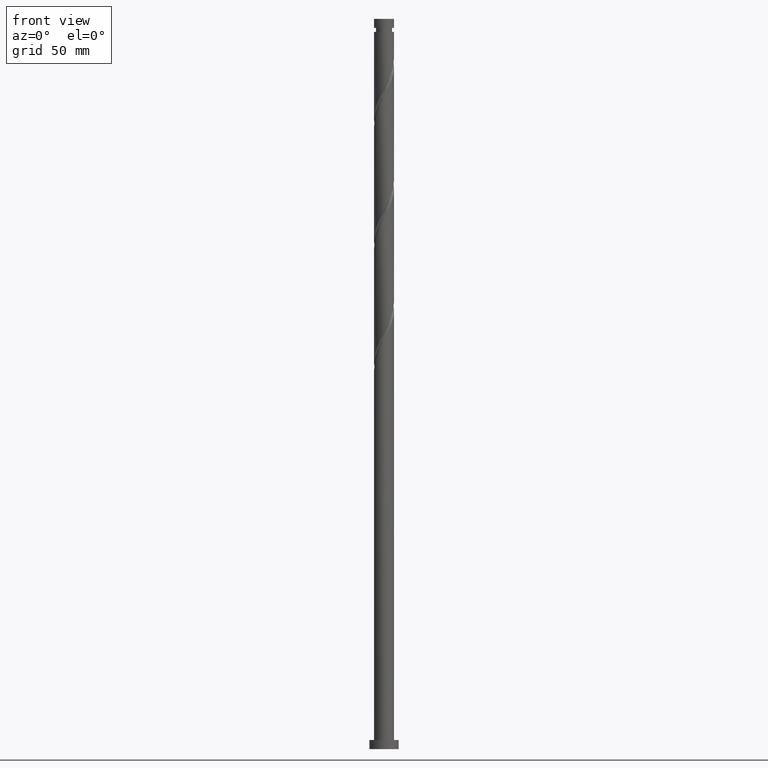
[diagram: clean part render]
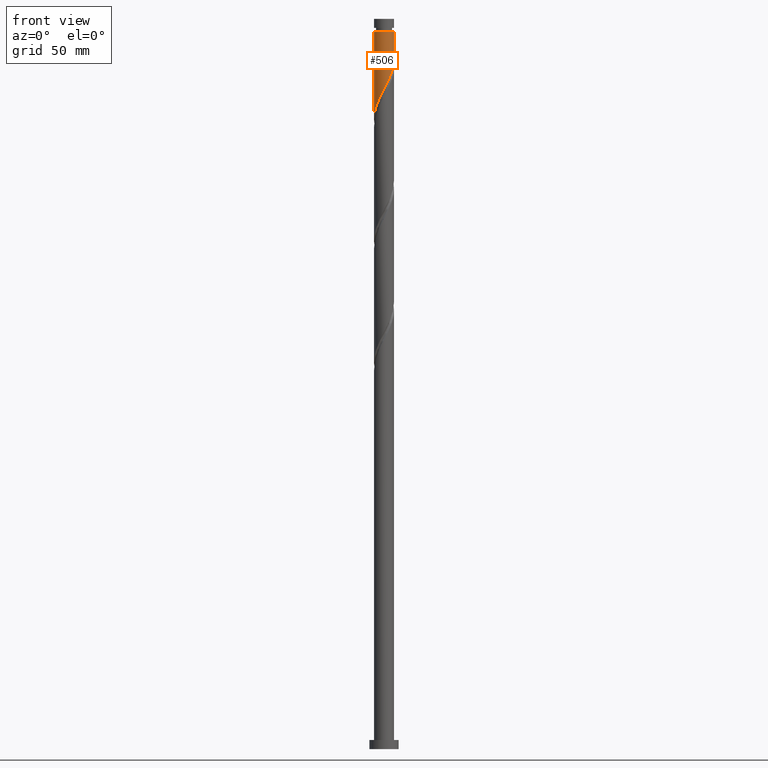
[diagram: same view with one face highlighted and labeled with its STEP entity id]
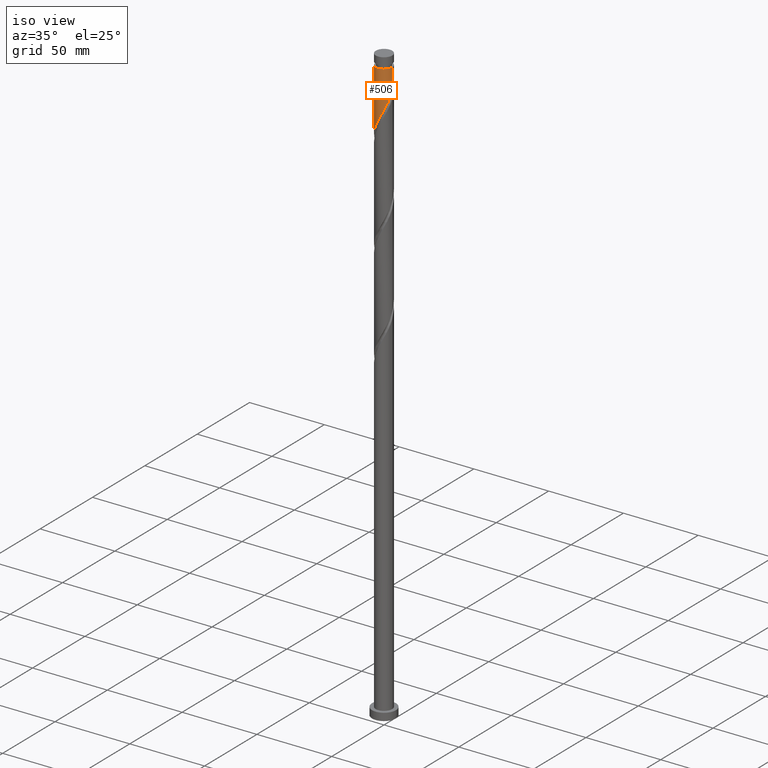
[diagram: same view with one face highlighted and labeled with its STEP entity id]
A machine part, front view. The second image highlights one B-rep face of the part: STEP entity #506.
A second angle (iso view) of the same face is appended — the face is thin or edge-on in the first view.
In plain terms, the highlighted cylindrical surface (edge-blend (fillet) strip) has radius 5.5 mm, axis along (-0, -0, -1).
Its self-contained STEP definition (entity closure, byte-faithful):
#42 = ORIENTED_EDGE ( 'NONE', *, *, #262, .T. ) ;
#66 = CARTESIAN_POINT ( 'NONE',  ( -5.500000000000001776, -4.095865825262278103E-15, 344.9724859766018881 ) ) ;
#69 = EDGE_LOOP ( 'NONE', ( #1037, #1252, #42, #1069 ) ) ;
#70 = CARTESIAN_POINT ( 'NONE',  ( -5.499999999999963585, 0.000000000000000000, 392.8470427330803432 ) ) ;
#118 = CARTESIAN_POINT ( 'NONE',  ( -3.662918688511955789, -4.143331439136995975, 353.9581538441915995 ) ) ;
#127 = CARTESIAN_POINT ( 'NONE',  ( 5.072446488125604169, -2.203282859347254874, 373.9581538441915427 ) ) ;
#137 = CARTESIAN_POINT ( 'NONE',  ( 2.282704589466713507, -5.003924435603280152, 366.1803760664136007 ) ) ;
#201 = LINE ( 'NONE', #1450, #1960 ) ;
#250 = EDGE_CURVE ( 'NONE', #1525, #1226, #1004, .T. ) ;
#262 = EDGE_CURVE ( 'NONE', #1859, #279, #201, .T. ) ;
#268 = CARTESIAN_POINT ( 'NONE',  ( 3.737754574404958507, -4.075948904820323904, 369.5137093997471425 ) ) ;
#279 = VERTEX_POINT ( 'NONE', #66 ) ;
#285 = CARTESIAN_POINT ( 'NONE',  ( -0.5279743527352924737, -5.505035133043654660, 360.6248205108582283 ) ) ;
#296 = CARTESIAN_POINT ( 'NONE',  ( -4.737904811144815653, -2.793252226443360797, 350.6248205108581146 ) ) ;
#306 = CARTESIAN_POINT ( 'NONE',  ( 0.6281243161452659818, -5.494508947727561932, 362.8470427330805137 ) ) ;
#357 = DIRECTION ( 'NONE',  ( -1.000000000000000000, 0.000000000000000000, 0.000000000000000000 ) ) ;
#364 = CARTESIAN_POINT ( 'NONE',  ( 5.499999999999963585, 6.735557395310419343E-16, 392.8470427330803432 ) ) ;
#415 = CARTESIAN_POINT ( 'NONE',  ( 4.787979792849804461, -2.706519813942242170, 372.8470427330803432 ) ) ;
#419 = CYLINDRICAL_SURFACE ( 'NONE', #1048, 5.500000000000000000 ) ;
#448 = CARTESIAN_POINT ( 'NONE',  ( 3.273196407501492100, -4.419975710105127575, 368.4025982886359429 ) ) ;
#506 = ADVANCED_FACE ( 'NONE', ( #1534 ), #419, .T. ) ;
#519 = DIRECTION ( 'NONE',  ( -0.000000000000000000, -0.000000000000000000, -1.000000000000000000 ) ) ;
#580 = CARTESIAN_POINT ( 'NONE',  ( 1.192447627240330821, -5.369177651772093718, 363.9581538441913153 ) ) ;
#751 = CARTESIAN_POINT ( 'NONE',  ( -1.660998008899283063, -5.274964866956348253, 358.4025982886359429 ) ) ;
#772 = CARTESIAN_POINT ( 'NONE',  ( -5.464409452811949564, -0.6246833854196904845, 346.1803760664136007 ) ) ;
#835 = CARTESIAN_POINT ( 'NONE',  ( 5.500000000000000000, 6.735557395310441037E-16, 400.0000000000000000 ) ) ;
#887 = CARTESIAN_POINT ( 'NONE',  ( 5.500000000000002665, -0.2631419960771089195, 377.7972707843712783 ) ) ;
#891 = CIRCLE ( 'NONE', #1049, 5.499999999999963585 ) ;
#898 = CARTESIAN_POINT ( 'NONE',  ( 0.05007498170498684426, -5.499772040385605187, 361.7359316219692005 ) ) ;
#916 = CARTESIAN_POINT ( 'NONE',  ( -5.031487450309294118, -2.295278364506418534, 349.5137093997470856 ) ) ;
#981 = EDGE_CURVE ( 'NONE', #1525, #1859, #891, .T. ) ;
#1004 = LINE ( 'NONE', #835, #1823 ) ;
#1035 = CARTESIAN_POINT ( 'NONE',  ( 5.246068057486477976, -1.651898888013445976, 375.0692649553025717 ) ) ;
#1037 = ORIENTED_EDGE ( 'NONE', *, *, #250, .F. ) ;
#1040 = CARTESIAN_POINT ( 'NONE',  ( 0.000000000000000000, 0.000000000000000000, 400.0000000000000000 ) ) ;
#1048 = AXIS2_PLACEMENT_3D ( 'NONE', #1040, #1658, #357 ) ;
#1049 = AXIS2_PLACEMENT_3D ( 'NONE', #1920, #1597, #1161 ) ;
#1067 = CARTESIAN_POINT ( 'NONE',  ( -3.192173385116793050, -4.478842381615140589, 355.0692649553025717 ) ) ;
#1069 = ORIENTED_EDGE ( 'NONE', *, *, #1253, .F. ) ;
#1078 = CARTESIAN_POINT ( 'NONE',  ( -4.444322171980338965, -3.291226088380308834, 351.7359316219693710 ) ) ;
#1161 = DIRECTION ( 'NONE',  ( -1.000000000000000000, 0.000000000000000000, 0.000000000000000000 ) ) ;
#1190 = CARTESIAN_POINT ( 'NONE',  ( -1.094486180817286769, -5.390000000000000568, 359.5137093997470288 ) ) ;
#1209 = CARTESIAN_POINT ( 'NONE',  ( 4.503513097574001200, -3.209756768537236127, 371.7359316219693142 ) ) ;
#1218 = CARTESIAN_POINT ( 'NONE',  ( -2.191213045310459240, -5.044659095524817616, 357.2914871775248571 ) ) ;
#1226 = VERTEX_POINT ( 'NONE', #1505 ) ;
#1252 = ORIENTED_EDGE ( 'NONE', *, *, #981, .T. ) ;
#1253 = EDGE_CURVE ( 'NONE', #1226, #279, #1766, .T. ) ;
#1377 = CARTESIAN_POINT ( 'NONE',  ( -5.500000000000001776, -4.095865825262278103E-15, 344.9724859766018881 ) ) ;
#1450 = CARTESIAN_POINT ( 'NONE',  ( -5.500000000000000000, 0.000000000000000000, 400.0000000000000000 ) ) ;
#1494 = CARTESIAN_POINT ( 'NONE',  ( -5.500000000000001776, -0.3133555559553767855, 345.5780772859864101 ) ) ;
#1505 = CARTESIAN_POINT ( 'NONE',  ( 5.500000000000001776, 1.704119357955838430E-15, 378.3058193099352593 ) ) ;
#1514 = CARTESIAN_POINT ( 'NONE',  ( 5.474877974583506557, -0.5250820539881405624, 377.2914871775248571 ) ) ;
#1521 = CARTESIAN_POINT ( 'NONE',  ( -5.215120016806765513, -1.747147163321219887, 348.4025982886358861 ) ) ;
#1525 = VERTEX_POINT ( 'NONE', #364 ) ;
#1534 = FACE_OUTER_BOUND ( 'NONE', #69, .T. ) ;
#1597 = DIRECTION ( 'NONE',  ( -0.000000000000000000, -0.000000000000000000, -1.000000000000000000 ) ) ;
#1646 = CARTESIAN_POINT ( 'NONE',  ( 2.808638240598027025, -4.764002515389932135, 367.2914871775248002 ) ) ;
#1653 = CARTESIAN_POINT ( 'NONE',  ( 5.500000000000001776, 1.704119357955838430E-15, 378.3058193099352593 ) ) ;
#1658 = DIRECTION ( 'NONE',  ( -0.000000000000000000, -0.000000000000000000, -1.000000000000000000 ) ) ;
#1665 = CARTESIAN_POINT ( 'NONE',  ( 1.756770938335398213, -5.243846355816629945, 365.0692649553026854 ) ) ;
#1675 = CARTESIAN_POINT ( 'NONE',  ( -4.053620430246145823, -3.717278763758650406, 352.8470427330804000 ) ) ;
#1685 = CARTESIAN_POINT ( 'NONE',  ( -5.398752583304239572, -1.199015962136023905, 347.2914871775248571 ) ) ;
#1766 =( BOUNDED_CURVE ( )  B_SPLINE_CURVE ( 2, ( #1653, #887, #1514, #1972, #1035, #127, #415, #1209, #1845, #268, #448, #1646, #137, #1665, #580, #306, #898, #285, #1190, #751, #1218, #1806, #1067, #118, #1675, #1078, #296, #916, #1521, #1685, #772, #1494, #1377 ),
 .UNSPECIFIED., .F., .T. ) 
 B_SPLINE_CURVE_WITH_KNOTS ( ( 3, 2, 2, 2, 2, 2, 2, 2, 2, 2, 2, 2, 2, 2, 2, 2, 3 ),
 ( 0.3045286012773111839, 0.3083333333333333481, 0.3166666666666666519, 0.3250000000000000111, 0.3333333333333333148, 0.3416666666666666741, 0.3499999999999999778, 0.3583333333333333370, 0.3666666666666666408, 0.3750000000000000000, 0.3833333333333333592, 0.3916666666666666630, 0.4000000000000000222, 0.4083333333333333259, 0.4166666666666666852, 0.4249999999999999889, 0.4295286012773114614 ),
 .UNSPECIFIED. ) 
 CURVE ( )  GEOMETRIC_REPRESENTATION_ITEM ( )  RATIONAL_B_SPLINE_CURVE ( ( 0.9066196499552243715, 0.9068171577856369847, 0.9090909090909361501, 0.9041108139711843128, 0.9090909090909361501, 0.9041108139711843128, 0.9090909090909361501, 0.9041108139711843128, 0.9090909090909361501, 0.9041108139711843128, 0.9090909090909361501, 0.9041108139711843128, 0.9090909090909361501, 0.9041108139711843128, 0.9090909090909361501, 0.9041108139711843128, 0.9090909090909361501, 0.9041108139711843128, 0.9090909090909361501, 0.9041108139711843128, 0.9090909090909361501, 0.9041108139711843128, 0.9090909090909361501, 0.9041108139711843128, 0.9090909090909361501, 0.9041108139711843128, 0.9090909090909361501, 0.9041108139711843128, 0.9090909090909361501, 0.9041108139711843128, 0.9090909090909361501, 0.9063845652764832561, 0.9066196499552243715 ) ) 
 REPRESENTATION_ITEM ( '' )  );
#1806 = CARTESIAN_POINT ( 'NONE',  ( -2.721428081721632530, -4.814353324093288755, 356.1803760664137144 ) ) ;
#1823 = VECTOR ( 'NONE', #1930, 1000.000000000000000 ) ;
#1845 = CARTESIAN_POINT ( 'NONE',  ( 4.120633835989479188, -3.642852836678780015, 370.6248205108581715 ) ) ;
#1859 = VERTEX_POINT ( 'NONE', #70 ) ;
#1920 = CARTESIAN_POINT ( 'NONE',  ( 0.000000000000000000, 0.000000000000000000, 392.8470427330803432 ) ) ;
#1930 = DIRECTION ( 'NONE',  ( -0.000000000000000000, -0.000000000000000000, -1.000000000000000000 ) ) ;
#1960 = VECTOR ( 'NONE', #519, 1000.000000000000000 ) ;
#1972 = CARTESIAN_POINT ( 'NONE',  ( 5.419689626847354447, -1.100514916679634414, 376.1803760664137712 ) ) ;